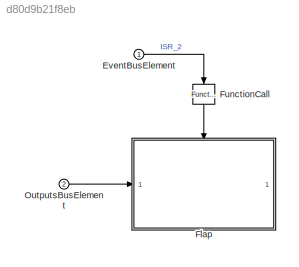
MODEL slx_d80d9b21f8eb
KIND model
CONFIG AbsTol = auto
CONFIG EnableMultiTasking = off
CONFIG FixedStep = SAMPLING_TIME
CONFIG MaxStep = auto
CONFIG MinStep = auto
CONFIG RelTol = 1e-3
CONFIG SampleTimeConstraint = Unconstrained
CONFIG SolverName = FixedStepAuto
CONFIG StartTime = 0.0
CONFIG StopTime = Inf
BLOCK [Inport] EventBusElement
BLOCK [ModelReference] Flap
  ModelNameDialog = Flap.slx
  ModelReferenceVersion = 11.4
  TriggerPortName = call
  TriggerPortStatesWhenEnabling = held
  TriggerPortTriggerType = function-call
BLOCK [Reference] FunctionCall  REF=simulink/Ports &
Subsystems/Function-Call
Generator
  NameLocation = left
  SourceBlock = simulink/Ports &\nSubsystems/Function-Call\nGenerator
  SourceType = Function-Call Generator
BLOCK [Inport] OutputsBusElement
  Port = 2
LINE EventBusElement:1 -> FunctionCall:1
LINE FunctionCall:1 -> Flap:trigger
LINE OutputsBusElement:1 -> Flap:1
